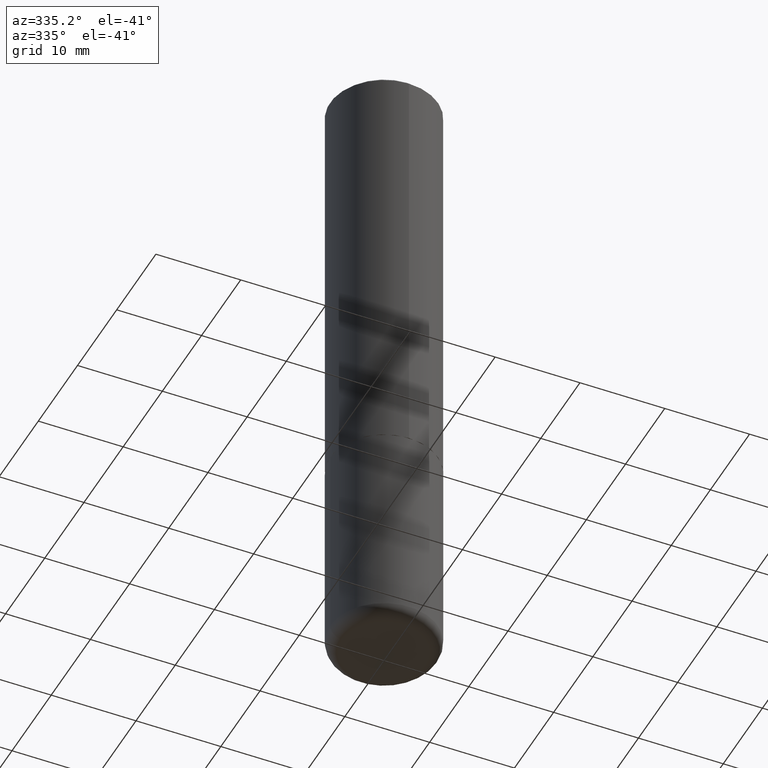
[diagram: clean part render]
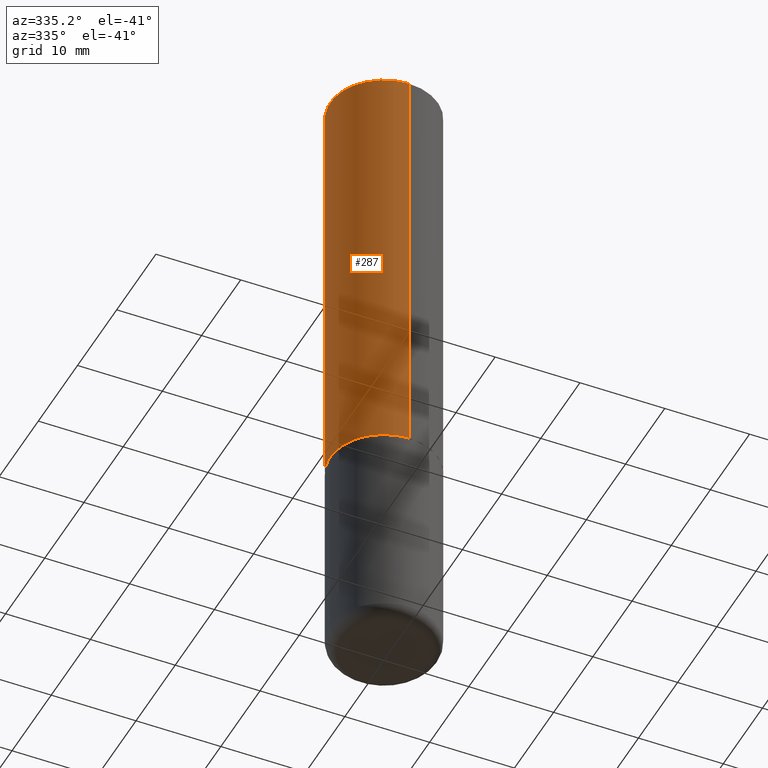
[diagram: same view with one face highlighted and labeled with its STEP entity id]
A machine part, auxiliary view. The second image highlights one B-rep face of the part: STEP entity #287.
In plain terms, the highlighted cylindrical surface (partial cylindrical patch) has radius 6.35 mm, axis along (-0, 0, 1).
Its self-contained STEP definition (entity closure, byte-faithful):
#16 = DIRECTION ( 'NONE',  ( -6.982962677686265922E-15, -1.000000000000000000, 3.483106191921935554E-15 ) ) ;
#24 = EDGE_LOOP ( 'NONE', ( #66, #97, #322, #54 ) ) ;
#46 = CIRCLE ( 'NONE', #349, 0.2500000000000002220 ) ;
#47 = CARTESIAN_POINT ( 'NONE',  ( 0.000000000000000000, 0.000000000000000000, 0.000000000000000000 ) ) ;
#50 = VERTEX_POINT ( 'NONE', #396 ) ;
#52 = AXIS2_PLACEMENT_3D ( 'NONE', #204, #116, #16 ) ;
#53 = CARTESIAN_POINT ( 'NONE',  ( 4.890660301432066520E-29, -6.976366270876620972E-15, -1.999000000000000110 ) ) ;
#54 = ORIENTED_EDGE ( 'NONE', *, *, #170, .F. ) ;
#57 = EDGE_CURVE ( 'NONE', #282, #125, #109, .T. ) ;
#60 = CARTESIAN_POINT ( 'NONE',  ( 1.776356839400276497E-15, 0.2499999999999933109, -1.999000000000000998 ) ) ;
#66 = ORIENTED_EDGE ( 'NONE', *, *, #235, .F. ) ;
#76 = CARTESIAN_POINT ( 'NONE',  ( -1.745740669421567467E-15, -0.2500000000000001110, 8.724820248720141809E-16 ) ) ;
#97 = ORIENTED_EDGE ( 'NONE', *, *, #334, .T. ) ;
#109 = LINE ( 'NONE', #76, #364 ) ;
#111 = DIRECTION ( 'NONE',  ( -6.982962677686266711E-15, -1.000000000000000000, 3.489928099488055146E-15 ) ) ;
#112 = CYLINDRICAL_SURFACE ( 'NONE', #316, 0.2500000000000001110 ) ;
#116 = DIRECTION ( 'NONE',  ( -2.446553427429748076E-29, 3.489928099488054752E-15, 1.000000000000000000 ) ) ;
#125 = VERTEX_POINT ( 'NONE', #132 ) ;
#132 = CARTESIAN_POINT ( 'NONE',  ( -1.715124499442882299E-15, -0.2500000000000000555, -0.01999999999999918510 ) ) ;
#141 = DIRECTION ( 'NONE',  ( -6.982962677686266711E-15, -1.000000000000000000, 3.278217592397113101E-15 ) ) ;
#143 = CARTESIAN_POINT ( 'NONE',  ( 1.776356839400251254E-15, 0.2500000000000001110, -8.724820248720141809E-16 ) ) ;
#170 = EDGE_CURVE ( 'NONE', #50, #125, #194, .T. ) ;
#194 = CIRCLE ( 'NONE', #52, 0.2500000000000000000 ) ;
#204 = CARTESIAN_POINT ( 'NONE',  ( 4.893106854859509639E-31, -6.979856198976127351E-17, -0.02000000000000005593 ) ) ;
#234 = DIRECTION ( 'NONE',  ( -2.446553427429748076E-29, 3.489928099488054357E-15, 1.000000000000000000 ) ) ;
#235 = EDGE_CURVE ( 'NONE', #381, #50, #338, .T. ) ;
#282 = VERTEX_POINT ( 'NONE', #399 ) ;
#287 = ADVANCED_FACE ( 'NONE', ( #372 ), #112, .T. ) ;
#303 = DIRECTION ( 'NONE',  ( -2.446553427429748076E-29, 3.489928099488054752E-15, 1.000000000000000000 ) ) ;
#316 = AXIS2_PLACEMENT_3D ( 'NONE', #47, #340, #111 ) ;
#322 = ORIENTED_EDGE ( 'NONE', *, *, #57, .T. ) ;
#334 = EDGE_CURVE ( 'NONE', #381, #282, #46, .T. ) ;
#338 = LINE ( 'NONE', #143, #356 ) ;
#340 = DIRECTION ( 'NONE',  ( -2.446553427429748076E-29, 3.489928099488054752E-15, 1.000000000000000000 ) ) ;
#349 = AXIS2_PLACEMENT_3D ( 'NONE', #53, #303, #141 ) ;
#356 = VECTOR ( 'NONE', #234, 39.37007874015748143 ) ;
#359 = DIRECTION ( 'NONE',  ( -2.446553427429748076E-29, 3.489928099488054357E-15, 1.000000000000000000 ) ) ;
#364 = VECTOR ( 'NONE', #359, 39.37007874015748143 ) ;
#372 = FACE_OUTER_BOUND ( 'NONE', #24, .T. ) ;
#381 = VERTEX_POINT ( 'NONE', #60 ) ;
#396 = CARTESIAN_POINT ( 'NONE',  ( 1.745740669421566875E-15, 0.2499999999999999167, -0.02000000000000092676 ) ) ;
#399 = CARTESIAN_POINT ( 'NONE',  ( -1.745740669421519149E-15, -0.2500000000000072164, -1.998999999999999444 ) ) ;